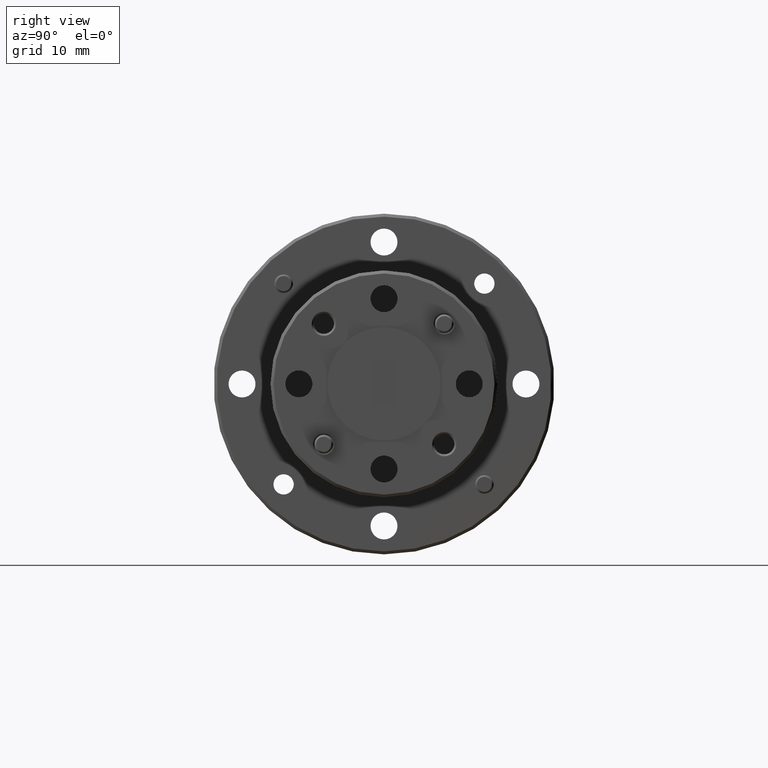
[diagram: clean part render]
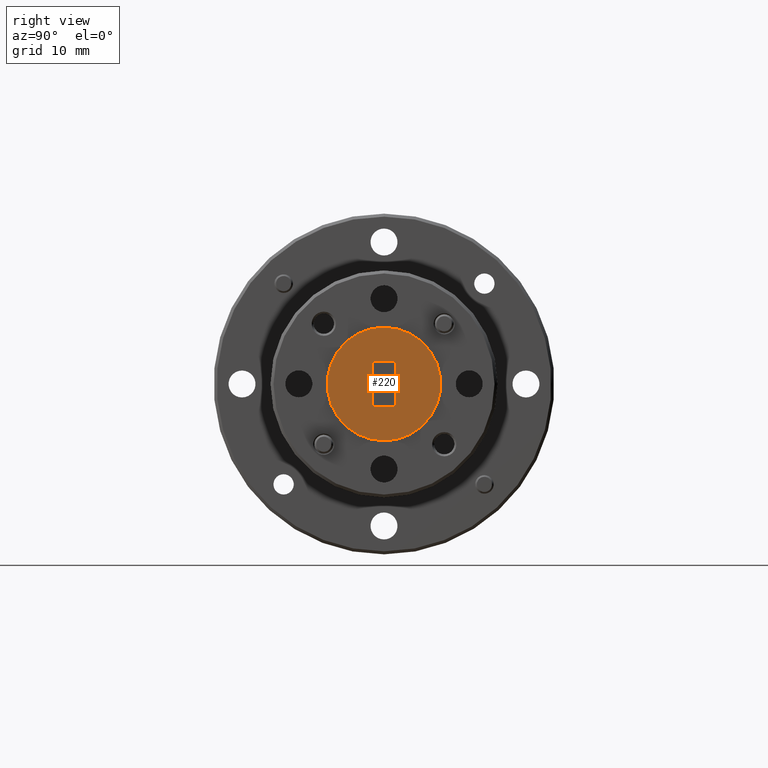
[diagram: same view with one face highlighted and labeled with its STEP entity id]
A machine part, right view. The second image highlights one B-rep face of the part: STEP entity #220.
In plain terms, the highlighted planar face has unit normal (-1, 0, -0).
Its self-contained STEP definition (entity closure, byte-faithful):
#72 = CARTESIAN_POINT ( 'NONE',  ( 1.500000000000000200, -0.03700000000000002600, 0.07399999999999995500 ) ) ;
#121 = LINE ( 'NONE', #2761, #3267 ) ;
#165 = EDGE_CURVE ( 'NONE', #3034, #2325, #228, .T. ) ;
#178 = CARTESIAN_POINT ( 'NONE',  ( 1.500000000000000200, -0.03700000000000000500, -0.07400000000000003800 ) ) ;
#196 = LINE ( 'NONE', #285, #2483 ) ;
#218 = AXIS2_PLACEMENT_3D ( 'NONE', #1560, #1859, #2788 ) ;
#220 = ADVANCED_FACE ( 'NONE', ( #594, #2136 ), #2769, .F. ) ;
#228 = CIRCLE ( 'NONE', #1392, 0.1875000000000003900 ) ;
#253 = ORIENTED_EDGE ( 'NONE', *, *, #1072, .F. ) ;
#285 = CARTESIAN_POINT ( 'NONE',  ( 1.500000000000000200, -0.03700000000000002600, 0.07399999999999995500 ) ) ;
#457 = EDGE_CURVE ( 'NONE', #2325, #3034, #2863, .T. ) ;
#467 = VERTEX_POINT ( 'NONE', #1436 ) ;
#594 = FACE_OUTER_BOUND ( 'NONE', #1970, .T. ) ;
#685 = VECTOR ( 'NONE', #2992, 39.37007874015748100 ) ;
#810 = CARTESIAN_POINT ( 'NONE',  ( 1.500000000000000200, -0.03700000000000000500, -0.07400000000000003800 ) ) ;
#901 = VECTOR ( 'NONE', #3589, 39.37007874015748100 ) ;
#1048 = CARTESIAN_POINT ( 'NONE',  ( 1.500000000000000200, 0.03699999999999997700, 0.07399999999999995500 ) ) ;
#1072 = EDGE_CURVE ( 'NONE', #1143, #2742, #121, .T. ) ;
#1143 = VERTEX_POINT ( 'NONE', #1842 ) ;
#1250 = CARTESIAN_POINT ( 'NONE',  ( 1.500000000000000200, 0.0000000000000000000, 0.0000000000000000000 ) ) ;
#1284 = DIRECTION ( 'NONE',  ( -1.000000000000000000, -0.0000000000000000000, -0.0000000000000000000 ) ) ;
#1392 = AXIS2_PLACEMENT_3D ( 'NONE', #1250, #1284, #2183 ) ;
#1436 = CARTESIAN_POINT ( 'NONE',  ( 1.500000000000000200, -0.03700000000000000500, -0.07400000000000003800 ) ) ;
#1462 = CARTESIAN_POINT ( 'NONE',  ( 1.500000000000000200, 0.0000000000000000000, 0.1875000000000003900 ) ) ;
#1560 = CARTESIAN_POINT ( 'NONE',  ( 1.500000000000000200, 0.1875000000000003900, 0.0000000000000000000 ) ) ;
#1790 = CARTESIAN_POINT ( 'NONE',  ( 1.500000000000000200, 2.296212748401292000E-017, -0.1875000000000003900 ) ) ;
#1841 = EDGE_CURVE ( 'NONE', #2679, #467, #3596, .T. ) ;
#1842 = CARTESIAN_POINT ( 'NONE',  ( 1.500000000000000200, 0.03699999999999999800, -0.07400000000000003800 ) ) ;
#1847 = DIRECTION ( 'NONE',  ( -0.0000000000000000000, -1.000000000000000000, -0.0000000000000000000 ) ) ;
#1853 = DIRECTION ( 'NONE',  ( 0.0000000000000000000, -1.730478036527193700E-016, 1.000000000000000000 ) ) ;
#1859 = DIRECTION ( 'NONE',  ( -1.000000000000000000, 0.0000000000000000000, -0.0000000000000000000 ) ) ;
#1960 = ORIENTED_EDGE ( 'NONE', *, *, #2148, .F. ) ;
#1970 = EDGE_LOOP ( 'NONE', ( #3653, #3270 ) ) ;
#2136 = FACE_BOUND ( 'NONE', #2424, .T. ) ;
#2148 = EDGE_CURVE ( 'NONE', #2742, #2679, #196, .T. ) ;
#2183 = DIRECTION ( 'NONE',  ( 0.0000000000000000000, 0.0000000000000000000, 1.000000000000000000 ) ) ;
#2261 = AXIS2_PLACEMENT_3D ( 'NONE', #2672, #2354, #2374 ) ;
#2325 = VERTEX_POINT ( 'NONE', #1790 ) ;
#2354 = DIRECTION ( 'NONE',  ( -1.000000000000000000, -0.0000000000000000000, -0.0000000000000000000 ) ) ;
#2374 = DIRECTION ( 'NONE',  ( 0.0000000000000000000, 0.0000000000000000000, 1.000000000000000000 ) ) ;
#2424 = EDGE_LOOP ( 'NONE', ( #253, #2452, #3915, #1960 ) ) ;
#2452 = ORIENTED_EDGE ( 'NONE', *, *, #3361, .F. ) ;
#2483 = VECTOR ( 'NONE', #1847, 39.37007874015748100 ) ;
#2672 = CARTESIAN_POINT ( 'NONE',  ( 1.500000000000000200, 0.0000000000000000000, 0.0000000000000000000 ) ) ;
#2679 = VERTEX_POINT ( 'NONE', #72 ) ;
#2742 = VERTEX_POINT ( 'NONE', #1048 ) ;
#2761 = CARTESIAN_POINT ( 'NONE',  ( 1.500000000000000200, 0.03699999999999999800, -0.07400000000000003800 ) ) ;
#2769 = PLANE ( 'NONE',  #218 ) ;
#2788 = DIRECTION ( 'NONE',  ( -0.0000000000000000000, 0.0000000000000000000, 1.000000000000000000 ) ) ;
#2863 = CIRCLE ( 'NONE', #2261, 0.1875000000000003900 ) ;
#2992 = DIRECTION ( 'NONE',  ( 0.0000000000000000000, 1.000000000000000000, 0.0000000000000000000 ) ) ;
#3034 = VERTEX_POINT ( 'NONE', #1462 ) ;
#3267 = VECTOR ( 'NONE', #1853, 39.37007874015748100 ) ;
#3270 = ORIENTED_EDGE ( 'NONE', *, *, #457, .F. ) ;
#3361 = EDGE_CURVE ( 'NONE', #467, #1143, #3901, .T. ) ;
#3589 = DIRECTION ( 'NONE',  ( -0.0000000000000000000, 1.153652024351462600E-016, -1.000000000000000000 ) ) ;
#3596 = LINE ( 'NONE', #178, #901 ) ;
#3653 = ORIENTED_EDGE ( 'NONE', *, *, #165, .F. ) ;
#3901 = LINE ( 'NONE', #810, #685 ) ;
#3915 = ORIENTED_EDGE ( 'NONE', *, *, #1841, .F. ) ;